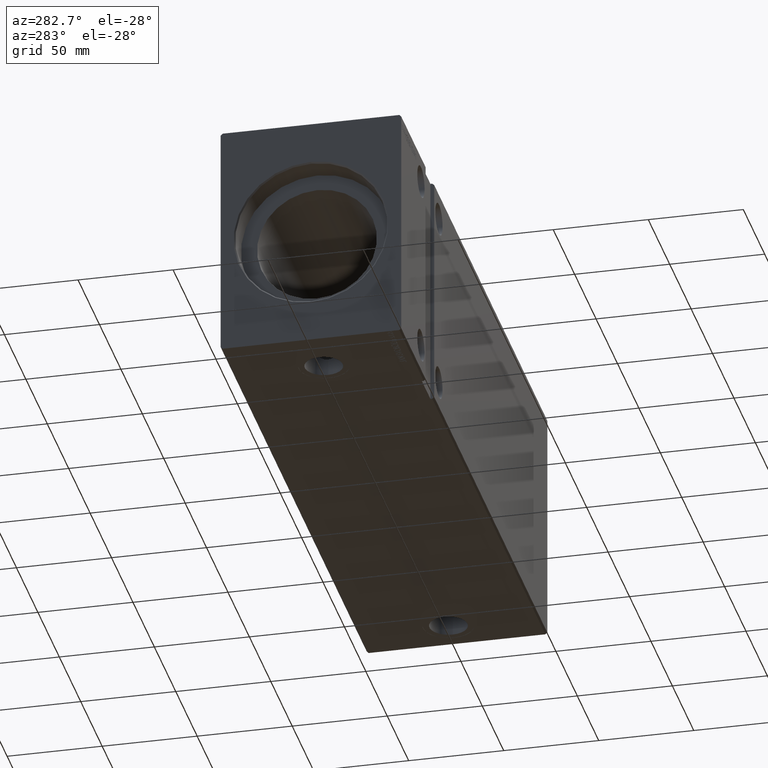
[diagram: clean part render]
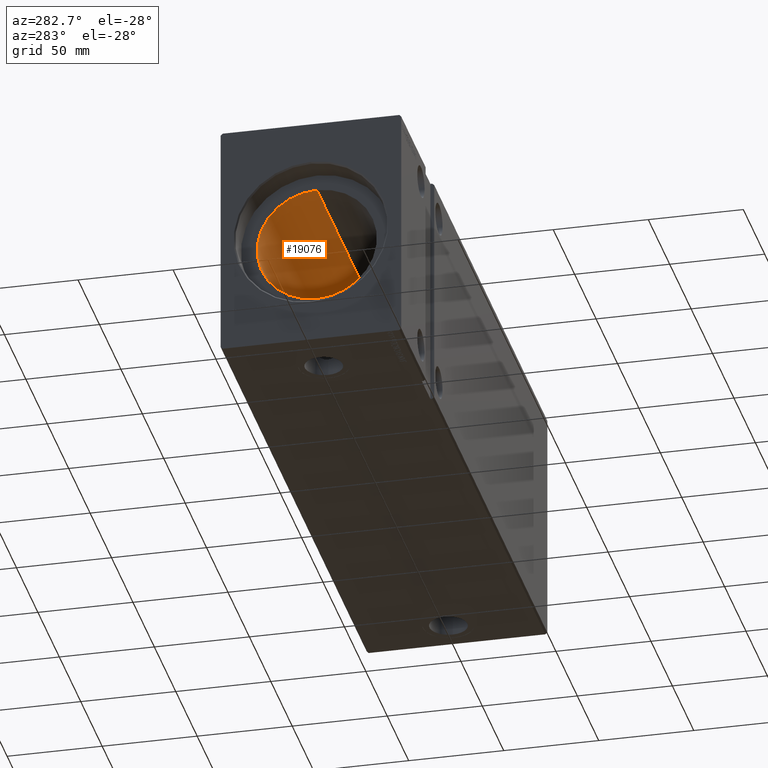
[diagram: same view with one face highlighted and labeled with its STEP entity id]
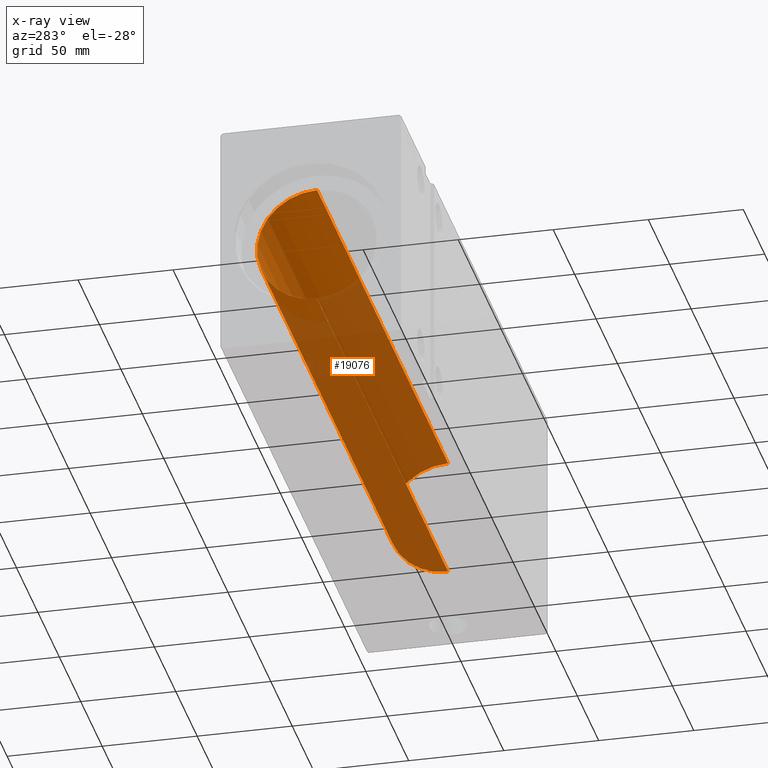
[diagram: x-ray of the same camera — body ghosted, the highlighted face saturated]
A machine part, auxiliary view. The second image highlights one B-rep face of the part: STEP entity #19076.
The next image is the same camera in x-ray: the body ghosted, the highlighted face saturated — about 70% of this face is hidden behind the body in this view.
In plain terms, the highlighted cylindrical surface (partial cylindrical patch) has radius 31.5 mm, axis along (-1, -0, -0).
Its self-contained STEP definition (entity closure, byte-faithful):
#1348 = DIRECTION ( 'NONE',  ( -1.000000000000000000, -0.000000000000000000, -0.000000000000000000 ) ) ;
#4155 = VERTEX_POINT ( 'NONE', #35699 ) ;
#4214 = EDGE_CURVE ( 'NONE', #40321, #4155, #37971, .T. ) ;
#6275 = DIRECTION ( 'NONE',  ( -1.000000000000000000, 0.000000000000000000, 0.000000000000000000 ) ) ;
#6634 = CARTESIAN_POINT ( 'NONE',  ( 14.00000000000001243, 3.857637417314162689E-15, -31.50000000000000000 ) ) ;
#9235 = ORIENTED_EDGE ( 'NONE', *, *, #4214, .F. ) ;
#10326 = AXIS2_PLACEMENT_3D ( 'NONE', #16718, #6275, #29682 ) ;
#11813 = DIRECTION ( 'NONE',  ( -1.000000000000000000, -0.000000000000000000, -0.000000000000000000 ) ) ;
#12446 = FACE_OUTER_BOUND ( 'NONE', #24563, .T. ) ;
#12875 = CYLINDRICAL_SURFACE ( 'NONE', #16565, 31.50000000000000000 ) ;
#13534 = EDGE_CURVE ( 'NONE', #36302, #19453, #27277, .T. ) ;
#16565 = AXIS2_PLACEMENT_3D ( 'NONE', #25426, #38399, #25848 ) ;
#16718 = CARTESIAN_POINT ( 'NONE',  ( 14.00000000000001243, 0.000000000000000000, 0.000000000000000000 ) ) ;
#17555 = CARTESIAN_POINT ( 'NONE',  ( 320.1999999999999886, 0.000000000000000000, 31.50000000000000000 ) ) ;
#18372 = ORIENTED_EDGE ( 'NONE', *, *, #20614, .T. ) ;
#18509 = VECTOR ( 'NONE', #1348, 1000.000000000000000 ) ;
#19076 = ADVANCED_FACE ( 'NONE', ( #12446 ), #12875, .F. ) ;
#19453 = VERTEX_POINT ( 'NONE', #6634 ) ;
#20614 = EDGE_CURVE ( 'NONE', #40321, #36302, #40726, .T. ) ;
#23016 = AXIS2_PLACEMENT_3D ( 'NONE', #27148, #33137, #23749 ) ;
#23749 = DIRECTION ( 'NONE',  ( 0.000000000000000000, 0.000000000000000000, 1.000000000000000000 ) ) ;
#24563 = EDGE_LOOP ( 'NONE', ( #27569, #9235, #18372, #35462 ) ) ;
#24584 = CARTESIAN_POINT ( 'NONE',  ( 320.1999999999999886, 3.857637417314162689E-15, -31.50000000000000000 ) ) ;
#25426 = CARTESIAN_POINT ( 'NONE',  ( 320.1999999999999886, 0.000000000000000000, 0.000000000000000000 ) ) ;
#25848 = DIRECTION ( 'NONE',  ( 0.000000000000000000, 0.000000000000000000, 1.000000000000000000 ) ) ;
#27148 = CARTESIAN_POINT ( 'NONE',  ( 320.1999999999999886, 0.000000000000000000, 0.000000000000000000 ) ) ;
#27277 = CIRCLE ( 'NONE', #10326, 31.50000000000000000 ) ;
#27569 = ORIENTED_EDGE ( 'NONE', *, *, #37001, .F. ) ;
#27768 = LINE ( 'NONE', #24584, #38179 ) ;
#28931 = CARTESIAN_POINT ( 'NONE',  ( 14.00000000000001243, 0.000000000000000000, 31.50000000000000000 ) ) ;
#29682 = DIRECTION ( 'NONE',  ( 0.000000000000000000, 0.000000000000000000, 1.000000000000000000 ) ) ;
#33137 = DIRECTION ( 'NONE',  ( -1.000000000000000000, 0.000000000000000000, 0.000000000000000000 ) ) ;
#35444 = CARTESIAN_POINT ( 'NONE',  ( 320.1999999999999886, 0.000000000000000000, 31.50000000000000000 ) ) ;
#35462 = ORIENTED_EDGE ( 'NONE', *, *, #13534, .T. ) ;
#35699 = CARTESIAN_POINT ( 'NONE',  ( 320.1999999999999886, 3.857637417314162689E-15, -31.50000000000000000 ) ) ;
#36302 = VERTEX_POINT ( 'NONE', #28931 ) ;
#37001 = EDGE_CURVE ( 'NONE', #4155, #19453, #27768, .T. ) ;
#37971 = CIRCLE ( 'NONE', #23016, 31.50000000000000000 ) ;
#38179 = VECTOR ( 'NONE', #11813, 1000.000000000000000 ) ;
#38399 = DIRECTION ( 'NONE',  ( -1.000000000000000000, -0.000000000000000000, -0.000000000000000000 ) ) ;
#40321 = VERTEX_POINT ( 'NONE', #35444 ) ;
#40726 = LINE ( 'NONE', #17555, #18509 ) ;